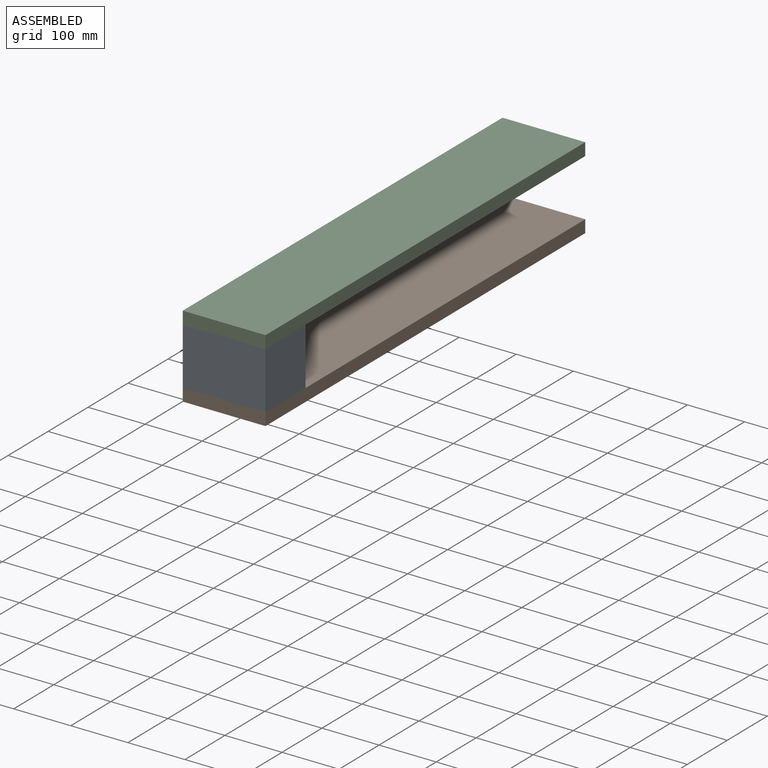
[diagram: assembled view]
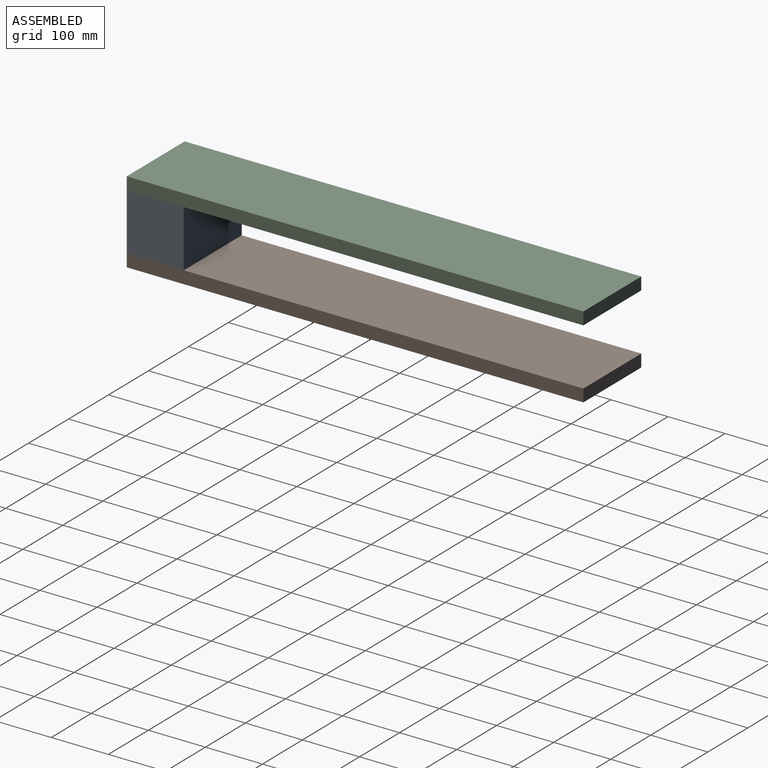
[diagram: assembled view, second angle]
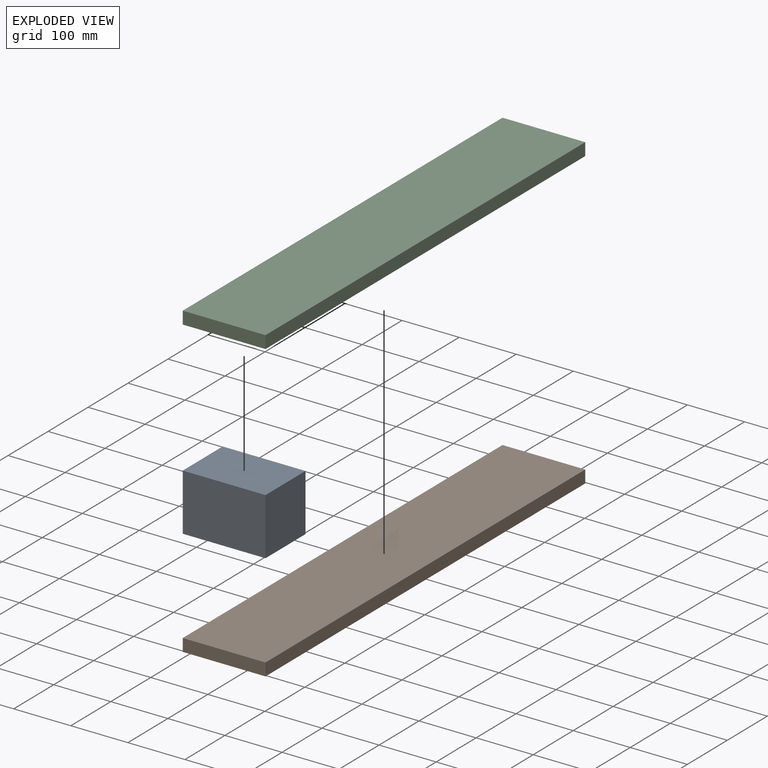
[diagram: exploded view]
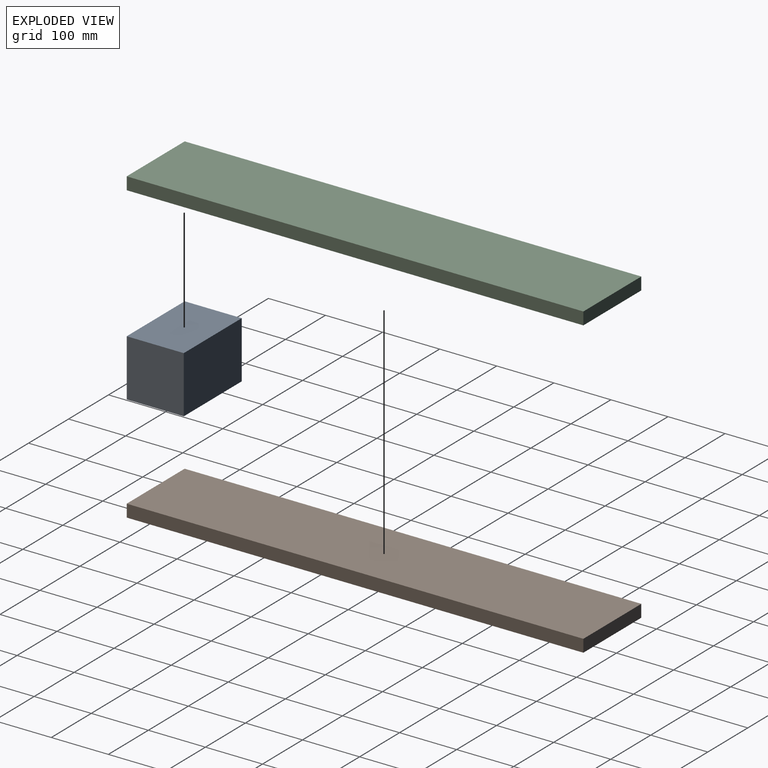
[diagram: exploded view, second angle]
ASSEMBLY  parts=3 mates=2
PART A: 6 faces, bbox 145x100x100 mm
  f0: plane 100x100mm, normal (-1,0,0), area 10000mm2, adj f1,f3,f4,f5
  f1: plane 145x100mm, normal (0,0,-1), area 14500mm2, adj f0,f2,f4,f5
  f2: plane 100x100mm, normal (1,0,0), area 10000mm2, adj f1,f3,f4,f5
  f3: plane 145x100mm, normal (0,0,1), area 14500mm2, adj f0,f2,f4,f5
  f4: plane 145x100mm, normal (0,1,0), area 14500mm2, adj f0,f1,f2,f3
  f5: plane 145x100mm, normal (0,-1,0), area 14500mm2, adj f0,f1,f2,f3
PART B: 6 faces, bbox 145x800x22 mm
  f0: plane 800x22mm, normal (-1,0,0), area 17600mm2, adj f1,f3,f4,f5
  f1: plane 800x145mm, normal (0,0,-1), area 116000mm2, adj f0,f2,f4,f5
  f2: plane 800x22mm, normal (1,0,0), area 17600mm2, adj f1,f3,f4,f5
  f3: plane 800x145mm, normal (0,0,1), area 116000mm2, adj f0,f2,f4,f5
  f4: plane 145x22mm, normal (0,1,0), area 3190mm2, adj f0,f1,f2,f3
  f5: plane 145x22mm, normal (0,-1,0), area 3190mm2, adj f0,f1,f2,f3
PART C: same geometry as B
PLACE A t=(-428.09,-424.32,402.02)mm
PLACE B t=(-435.27,-424.32,361.01)mm
PLACE C t=(-435.27,-424.32,483.01)mm
MATE fastened A.f3 <-> C.f1  axis (0,0,1) through (-351.9,-424.32,465.79)mm
MATE fastened A.f1 <-> B.f3  axis (0,0,-1) through (-496.9,-424.32,365.79)mm
